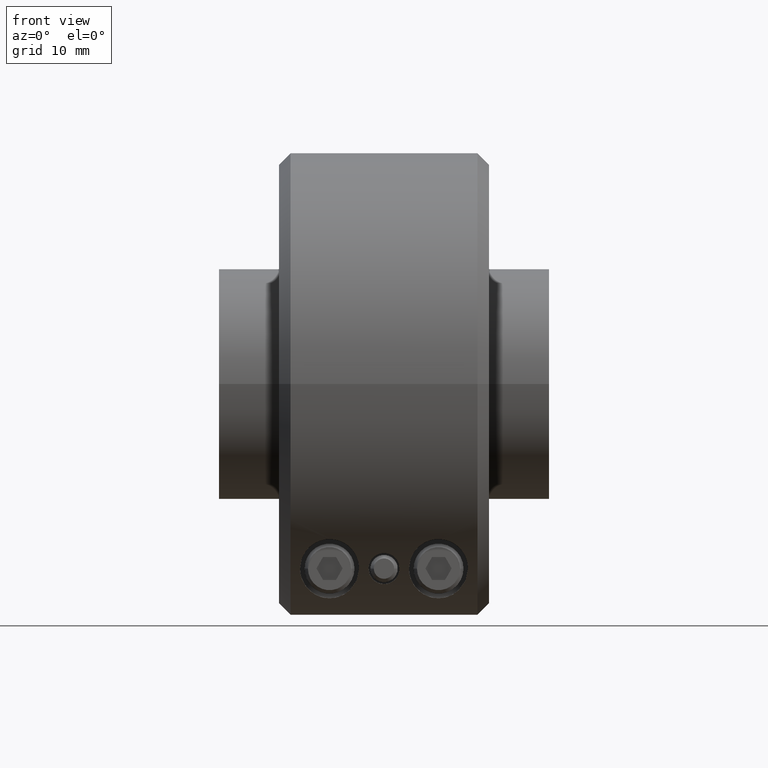
[diagram: clean part render]
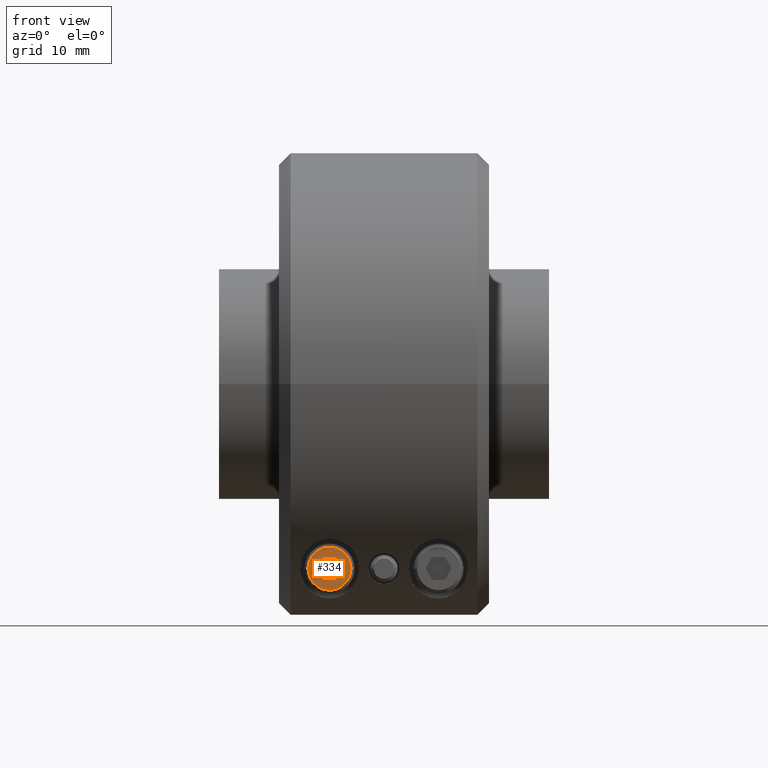
[diagram: same view with one face highlighted and labeled with its STEP entity id]
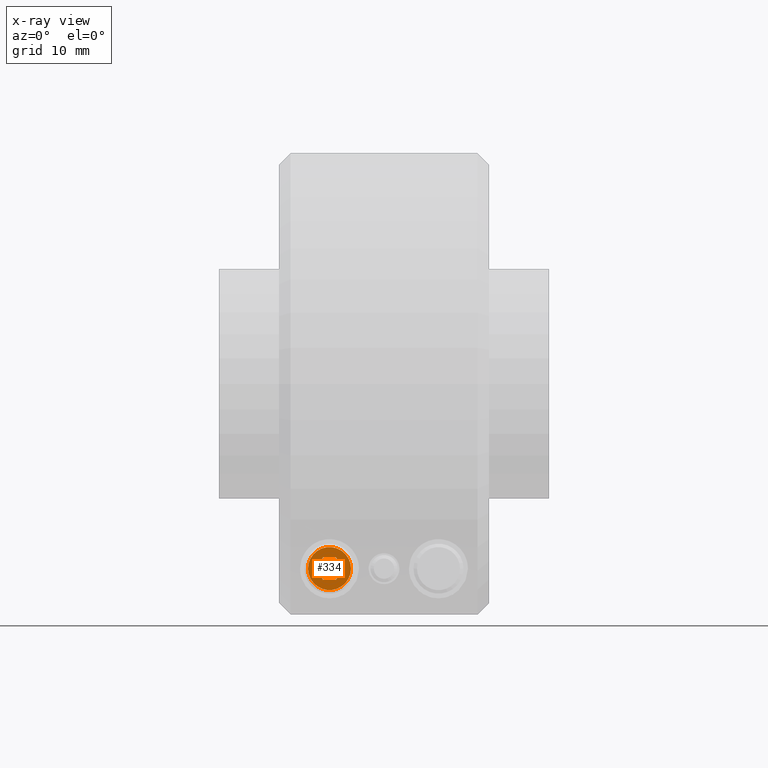
[diagram: x-ray of the same camera — body ghosted, the highlighted face saturated]
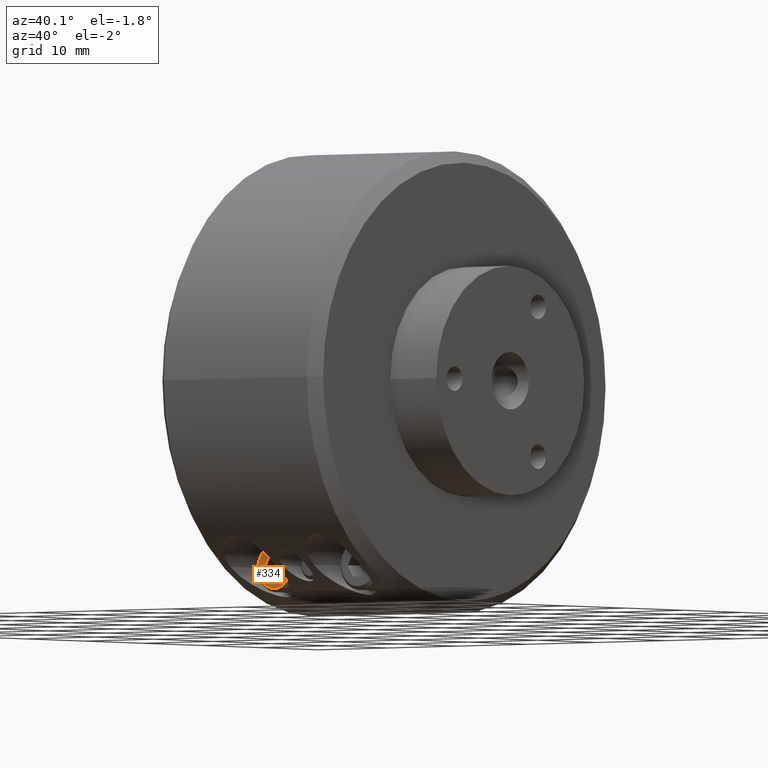
[diagram: same view with one face highlighted and labeled with its STEP entity id]
A machine part, front view. The second image highlights one B-rep face of the part: STEP entity #334.
The next image is the same camera in x-ray: the body ghosted, the highlighted face saturated — about 0% of this face is hidden behind the body in this view.
A second angle (auxiliary view) of the same face is appended — the face is thin or edge-on in the first view.
In plain terms, the highlighted planar face has unit normal (-0, -1, 0).
Its self-contained STEP definition (entity closure, byte-faithful):
#25 = CARTESIAN_POINT ( 'NONE',  ( -0.1429527559055119300, -0.4574803149606298500, -0.8000000000000000400 ) ) ;
#76 = CARTESIAN_POINT ( 'NONE',  ( -0.3294881889763779900, -0.4574803149606298500, -0.8000000000000000400 ) ) ;
#190 = AXIS2_PLACEMENT_3D ( 'NONE', #2586, #2646, #2761 ) ;
#199 = AXIS2_PLACEMENT_3D ( 'NONE', #2650, #2736, #2688 ) ;
#334 = ADVANCED_FACE ( 'NONE', ( #3551, #3232 ), #872, .T. ) ;
#408 = DIRECTION ( 'NONE',  ( -1.024442997624098800E-016, -1.000000000000000000, 0.0000000000000000000 ) ) ;
#432 = VERTEX_POINT ( 'NONE', #76 ) ;
#446 = VERTEX_POINT ( 'NONE', #25 ) ;
#475 = DIRECTION ( 'NONE',  ( -1.000000000000000000, 1.024442997624098800E-016, 0.0000000000000000000 ) ) ;
#573 = EDGE_CURVE ( 'NONE', #432, #446, #3408, .T. ) ;
#578 = EDGE_CURVE ( 'NONE', #914, #802, #3414, .T. ) ;
#592 = EDGE_CURVE ( 'NONE', #821, #1462, #3437, .T. ) ;
#594 = EDGE_CURVE ( 'NONE', #446, #432, #3443, .T. ) ;
#597 = EDGE_CURVE ( 'NONE', #1378, #821, #3442, .T. ) ;
#600 = EDGE_CURVE ( 'NONE', #802, #1378, #3451, .T. ) ;
#626 = EDGE_CURVE ( 'NONE', #1462, #918, #3488, .T. ) ;
#628 = EDGE_CURVE ( 'NONE', #918, #914, #3475, .T. ) ;
#785 = AXIS2_PLACEMENT_3D ( 'NONE', #884, #408, #475 ) ;
#802 = VERTEX_POINT ( 'NONE', #1673 ) ;
#821 = VERTEX_POINT ( 'NONE', #1690 ) ;
#872 = PLANE ( 'NONE',  #785 ) ;
#884 = CARTESIAN_POINT ( 'NONE',  ( -0.2362204724409449600, -0.4574803149606298500, -0.8000000000000000400 ) ) ;
#914 = VERTEX_POINT ( 'NONE', #1779 ) ;
#918 = VERTEX_POINT ( 'NONE', #1783 ) ;
#1378 = VERTEX_POINT ( 'NONE', #1786 ) ;
#1462 = VERTEX_POINT ( 'NONE', #1788 ) ;
#1673 = CARTESIAN_POINT ( 'NONE',  ( -0.2646333793892532400, -0.4574803149606298500, -0.7507874015748032800 ) ) ;
#1690 = CARTESIAN_POINT ( 'NONE',  ( -0.1793946585443283400, -0.4574803149606298500, -0.8000000000000001600 ) ) ;
#1779 = CARTESIAN_POINT ( 'NONE',  ( -0.2930462863375615200, -0.4574803149606298500, -0.8000000000000000400 ) ) ;
#1783 = CARTESIAN_POINT ( 'NONE',  ( -0.2646333793892533000, -0.4574803149606298500, -0.8492125984251968100 ) ) ;
#1786 = CARTESIAN_POINT ( 'NONE',  ( -0.2078075654926367100, -0.4574803149606298500, -0.7507874015748032800 ) ) ;
#1788 = CARTESIAN_POINT ( 'NONE',  ( -0.2078075654926366300, -0.4574803149606298500, -0.8492125984251968100 ) ) ;
#2473 = DIRECTION ( 'NONE',  ( 0.4999999999999998900, 0.0000000000000000000, -0.8660254037844386000 ) ) ;
#2492 = DIRECTION ( 'NONE',  ( -1.000000000000000000, 0.0000000000000000000, 0.0000000000000000000 ) ) ;
#2556 = CARTESIAN_POINT ( 'NONE',  ( -0.2930462863375615200, -0.4574803149606298500, -0.8000000000000000400 ) ) ;
#2560 = DIRECTION ( 'NONE',  ( -0.5000000000000007800, -0.0000000000000000000, -0.8660254037844382600 ) ) ;
#2578 = DIRECTION ( 'NONE',  ( -0.4999999999999998300, 0.0000000000000000000, 0.8660254037844386000 ) ) ;
#2586 = CARTESIAN_POINT ( 'NONE',  ( -0.2362204724409449600, -0.4574803149606298500, -0.8000000000000000400 ) ) ;
#2606 = DIRECTION ( 'NONE',  ( 0.5000000000000001100, 0.0000000000000000000, 0.8660254037844386000 ) ) ;
#2639 = CARTESIAN_POINT ( 'NONE',  ( -0.1793946585443283400, -0.4574803149606298500, -0.8000000000000001600 ) ) ;
#2646 = DIRECTION ( 'NONE',  ( 1.024442997624098700E-016, 1.000000000000000000, -0.0000000000000000000 ) ) ;
#2650 = CARTESIAN_POINT ( 'NONE',  ( -0.2362204724409449600, -0.4574803149606298500, -0.8000000000000000400 ) ) ;
#2655 = CARTESIAN_POINT ( 'NONE',  ( -0.2078075654926366300, -0.4574803149606298500, -0.8492125984251968100 ) ) ;
#2672 = CARTESIAN_POINT ( 'NONE',  ( -0.2078075654926367100, -0.4574803149606298500, -0.7507874015748032800 ) ) ;
#2688 = DIRECTION ( 'NONE',  ( -1.000000000000000000, 0.0000000000000000000, 0.0000000000000000000 ) ) ;
#2736 = DIRECTION ( 'NONE',  ( 1.024442997624098700E-016, 1.000000000000000000, -0.0000000000000000000 ) ) ;
#2761 = DIRECTION ( 'NONE',  ( -1.000000000000000000, 0.0000000000000000000, 0.0000000000000000000 ) ) ;
#2793 = DIRECTION ( 'NONE',  ( 1.000000000000000000, 0.0000000000000000000, 0.0000000000000000000 ) ) ;
#2848 = CARTESIAN_POINT ( 'NONE',  ( -0.2646333793892532400, -0.4574803149606298500, -0.7507874015748032800 ) ) ;
#2857 = CARTESIAN_POINT ( 'NONE',  ( -0.2646333793892533000, -0.4574803149606298500, -0.8492125984251968100 ) ) ;
#3232 = FACE_OUTER_BOUND ( 'NONE', #3645, .T. ) ;
#3408 = CIRCLE ( 'NONE', #190, 0.09326771653543306000 ) ;
#3414 = LINE ( 'NONE', #2556, #3415 ) ;
#3415 = VECTOR ( 'NONE', #2606, 39.37007874015748100 ) ;
#3437 = LINE ( 'NONE', #2639, #3438 ) ;
#3438 = VECTOR ( 'NONE', #2560, 39.37007874015748900 ) ;
#3442 = LINE ( 'NONE', #2672, #3446 ) ;
#3443 = CIRCLE ( 'NONE', #199, 0.09326771653543306000 ) ;
#3446 = VECTOR ( 'NONE', #2473, 39.37007874015748900 ) ;
#3451 = LINE ( 'NONE', #2848, #3452 ) ;
#3452 = VECTOR ( 'NONE', #2793, 39.37007874015748100 ) ;
#3475 = LINE ( 'NONE', #2857, #3494 ) ;
#3485 = VECTOR ( 'NONE', #2492, 39.37007874015748100 ) ;
#3488 = LINE ( 'NONE', #2655, #3485 ) ;
#3494 = VECTOR ( 'NONE', #2578, 39.37007874015748900 ) ;
#3510 = ORIENTED_EDGE ( 'NONE', *, *, #592, .T. ) ;
#3522 = ORIENTED_EDGE ( 'NONE', *, *, #600, .T. ) ;
#3532 = ORIENTED_EDGE ( 'NONE', *, *, #573, .F. ) ;
#3545 = ORIENTED_EDGE ( 'NONE', *, *, #594, .F. ) ;
#3551 = FACE_BOUND ( 'NONE', #3728, .T. ) ;
#3579 = ORIENTED_EDGE ( 'NONE', *, *, #578, .T. ) ;
#3597 = ORIENTED_EDGE ( 'NONE', *, *, #626, .T. ) ;
#3610 = ORIENTED_EDGE ( 'NONE', *, *, #597, .T. ) ;
#3617 = ORIENTED_EDGE ( 'NONE', *, *, #628, .T. ) ;
#3645 = EDGE_LOOP ( 'NONE', ( #3545, #3532 ) ) ;
#3728 = EDGE_LOOP ( 'NONE', ( #3510, #3597, #3617, #3579, #3522, #3610 ) ) ;